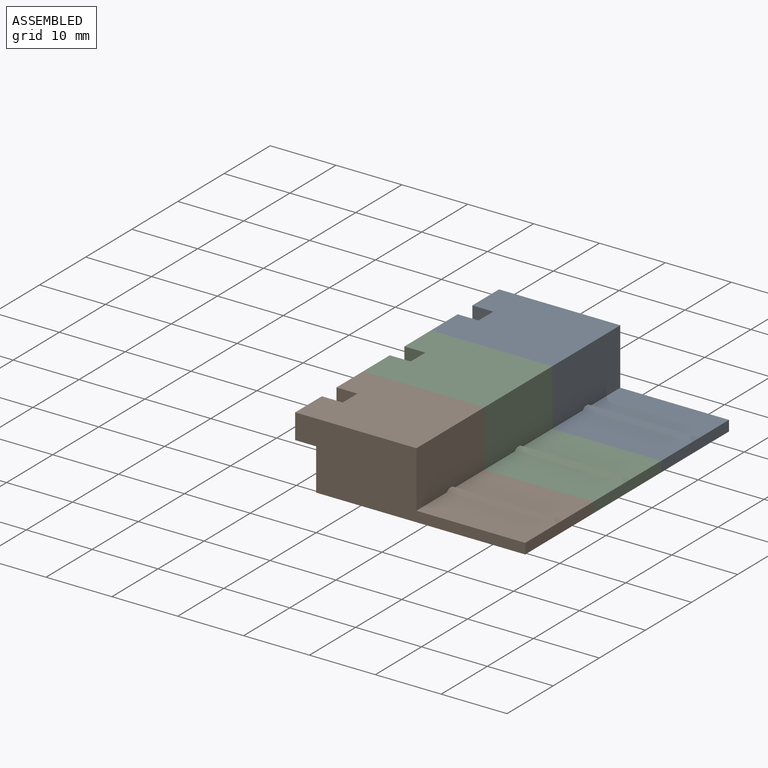
[diagram: assembled view]
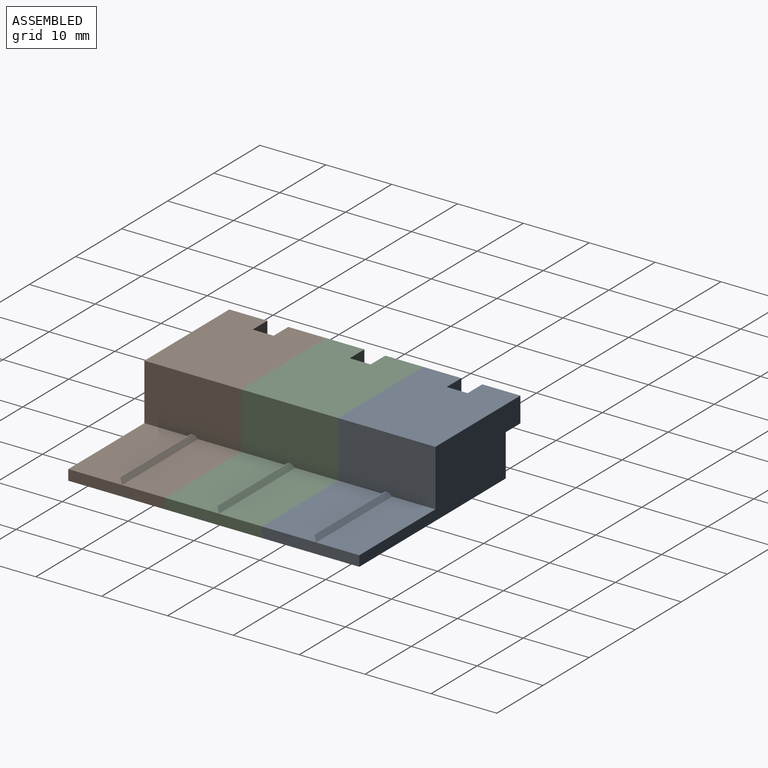
[diagram: assembled view, second angle]
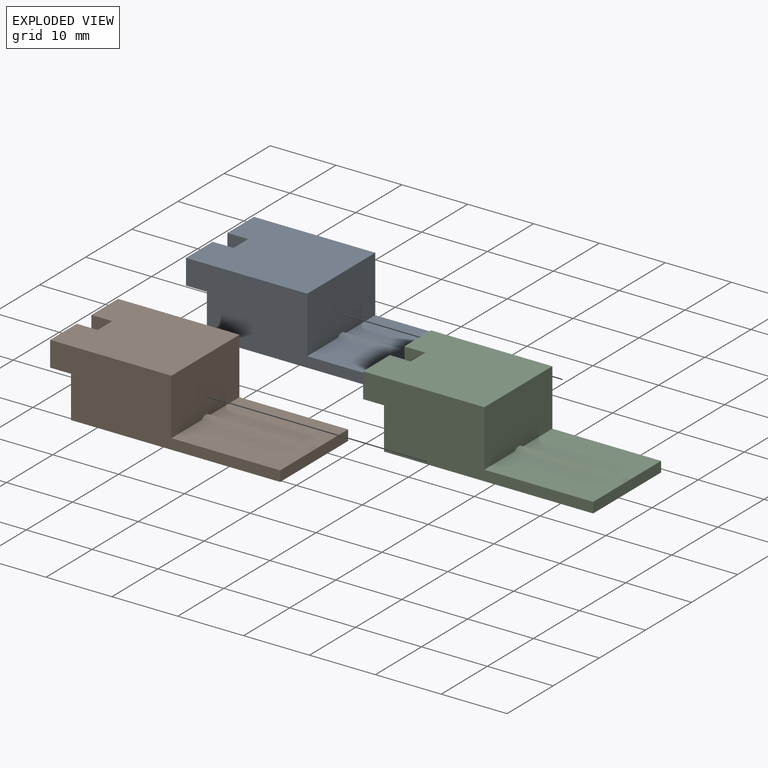
[diagram: exploded view]
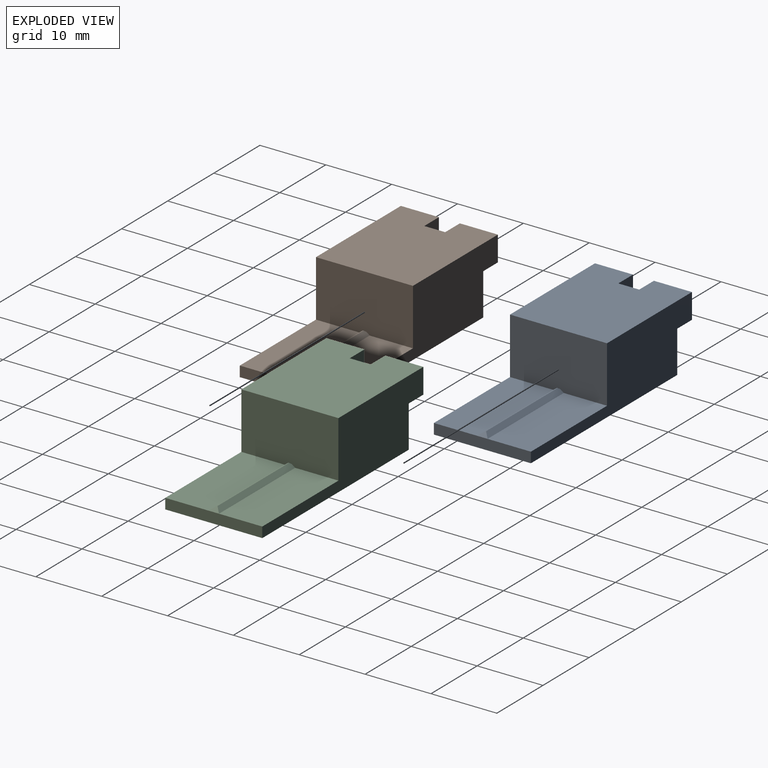
[diagram: exploded view, second angle]
ASSEMBLY  parts=3 mates=6
PART A: 20 faces, bbox 34.9x14.7x10.2 mm
  f0: plane 16.51x6.57mm, normal (0,0,1), area 108.5mm2, adj f2,f13,f17,f19
  f1: plane 34.93x10.16mm, normal (0,1,0), area 193.1mm2, adj f3,f6,f7,f8,f11,f12,f13,f19
  f2: plane 34.93x10.16mm, normal (0,-1,0), area 193.1mm2, adj f0,f3,f6,f9,f10,f11,f13,f19
  f3: plane 14.73x10.16mm, normal (-1,0,0), area 105.6mm2, adj f1,f2,f4,f5,f6,f7,f9,f11
  f4: plane 3.81x3.18mm, normal (0,-1,0), area 12.1mm2, adj f3,f7,f8,f11
  f5: plane 3.81x3.18mm, normal (0,1,0), area 12.1mm2, adj f3,f9,f10,f11
  f6: plane 31.75x14.73mm, normal (0,0,-1), area 467.7mm2, adj f1,f2,f3,f13
  f7: plane 5.78x3.18mm, normal (0,0,-1), area 18.3mm2, adj f1,f3,f4,f8
  f8: plane 5.78x3.81mm, normal (-1,0,0), area 22mm2, adj f1,f4,f7,f11
  f9: plane 5.78x3.18mm, normal (0,0,-1), area 18.3mm2, adj f2,f3,f5,f10
  f10: plane 5.78x3.81mm, normal (-1,0,0), area 22mm2, adj f2,f5,f9,f11
  f11: plane 18.42x14.73mm, normal (0,0,1), area 261.2mm2, adj f1,f2,f3,f4,f5,f8,f10,f19
  f12: plane 16.51x6.57mm, normal (0,0,1), area 108.5mm2, adj f1,f13,f15,f19
  f13: plane 14.73x1.59mm, normal (1,0,0), area 23.4mm2, adj f0,f1,f2,f6,f12,f14
  f14: plane 1.59x0.76mm, normal (0.6,0,0.8), area 0.8mm2, adj f13,f15,f17,f18
  f15: plane 16.51x0.76mm, normal (0,0.6,0.8), area 15.3mm2, adj f12,f14,f16,f18,f19
  f16: plane 0.57x0.25mm, normal (-0.6,0,0.8), area 0.1mm2, adj f15,f17,f18,f19
  f17: plane 16.51x0.76mm, normal (0,-0.6,0.8), area 15.3mm2, adj f0,f14,f16,f18,f19
  f18: plane 15.5x0.07mm, normal (0,0,1), area 1.1mm2, adj f14,f15,f16,f17
  f19: plane 14.73x8.57mm, normal (1,0,0), area 125.9mm2, adj f0,f1,f2,f11,f12,f15,f16,f17
PART B: same geometry as A
PART C: same geometry as A
PLACE A t=(-25.71,52.35,11.56)mm
PLACE B t=(-25.71,22.88,11.56)mm
PLACE C t=(-25.71,37.61,11.56)mm
MATE planar B.f3 <-> C.f3  axis (-1,0,0) through (-25.71,15.52,15.32)mm
MATE planar A.f3 <-> C.f3  axis (-1,0,0) through (-25.71,44.98,15.32)mm
MATE planar C.f1 <-> A.f2  axis (0,1,0) through (-16.51,37.61,16.26)mm
MATE planar B.f11 <-> C.f11  axis (0,0,1) through (-19.38,15.52,21.72)mm
MATE planar A.f11 <-> C.f11  axis (0,0,1) through (-19.38,44.98,21.72)mm
MATE planar B.f1 <-> C.f2  axis (0,1,0) through (-16.51,22.88,16.26)mm
